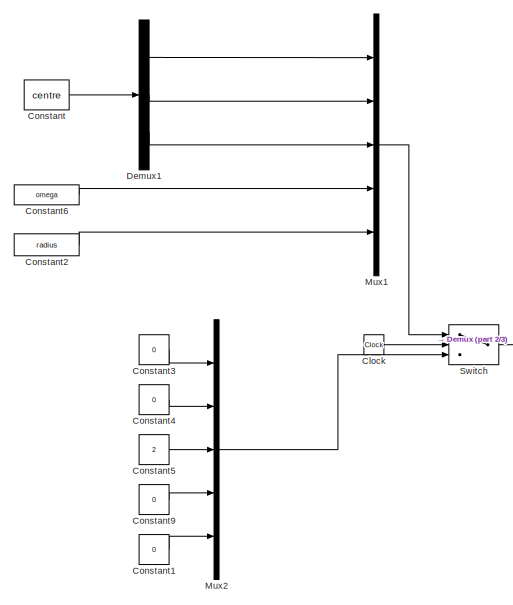
[diagram: root canvas - part 1/3, top left region]
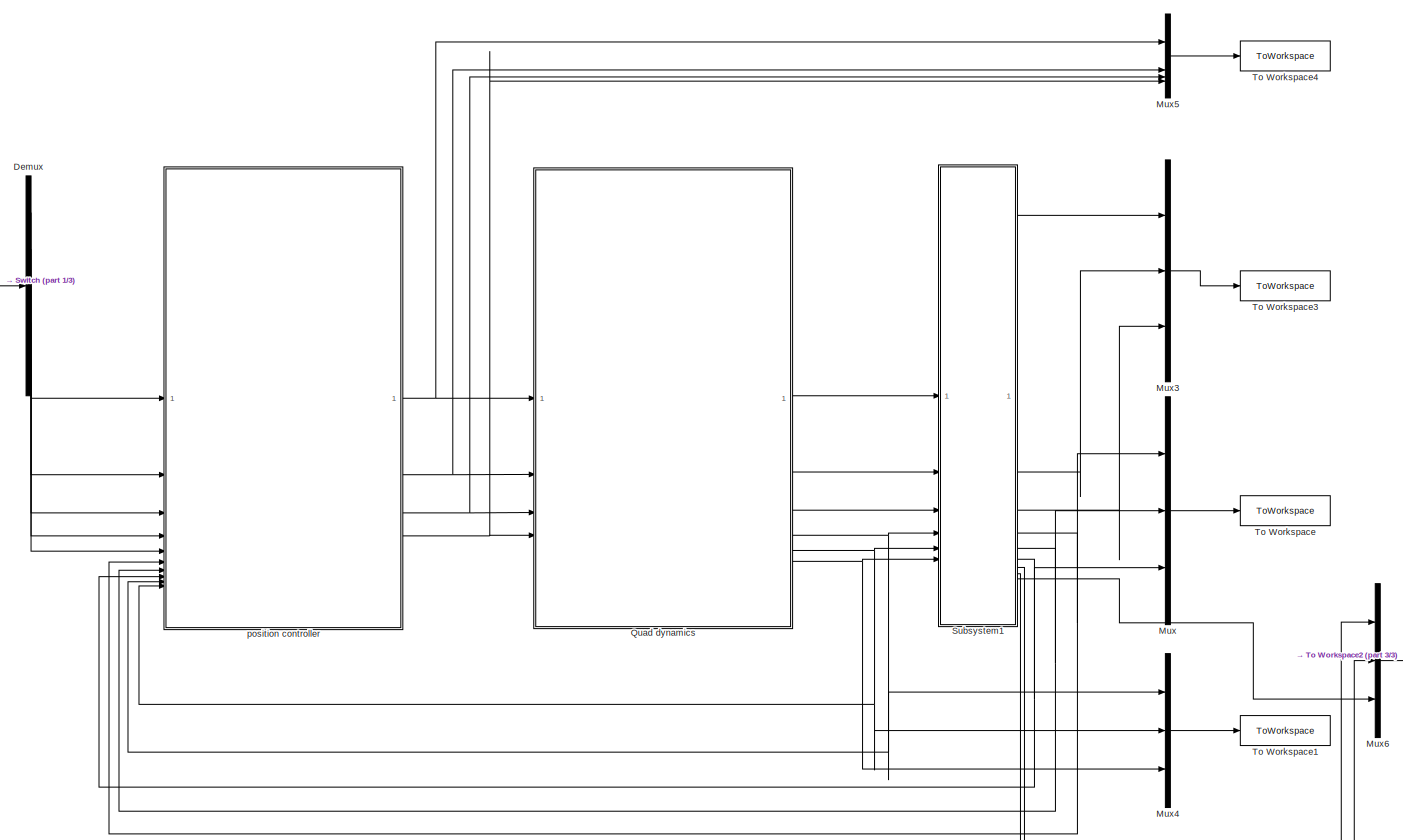
[diagram: root canvas - part 2/3, center side, full height]
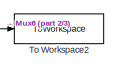
[diagram: root canvas - part 3/3, bottom right region]
MODEL slx_0fd6c9b4a797
KIND model
CONFIG AbsTol = auto
CONFIG EnableMultiTasking = off
CONFIG FixedStep = auto
CONFIG MaxStep = auto
CONFIG MinStep = auto
CONFIG RelTol = 1e-3
CONFIG SampleTimeConstraint = Unconstrained
CONFIG SolverName = VariableStepAuto
CONFIG StartTime = 0.0
CONFIG StopTime = 300
BLOCK [Clock] Clock
BLOCK [Constant] Constant
  Value = centre
BLOCK [Constant] Constant1
  Value = 0
BLOCK [Constant] Constant2
  Value = radius
BLOCK [Constant] Constant3
  Value = 0
BLOCK [Constant] Constant4
  Value = 0
BLOCK [Constant] Constant5
  Value = 2
BLOCK [Constant] Constant6
  Value = omega
BLOCK [Constant] Constant9
  Value = 0
BLOCK [Demux] Demux
  Outputs = 5
BLOCK [Demux] Demux1
  Outputs = 3
BLOCK [Mux] Mux
  DisplayOption = bar
  Inputs = 3
BLOCK [Mux] Mux1
  DisplayOption = bar
  Inputs = 5
BLOCK [Mux] Mux2
  DisplayOption = bar
  Inputs = 5
BLOCK [Mux] Mux3
  DisplayOption = bar
  Inputs = 3
BLOCK [Mux] Mux4
  DisplayOption = bar
  Inputs = 3
BLOCK [Mux] Mux5
  DisplayOption = bar
BLOCK [Mux] Mux6
  DisplayOption = bar
  Inputs = 3
BLOCK [SubSystem] Quad dynamics
  ReferencedSubsystem = multirotor_dynamic_model_sim
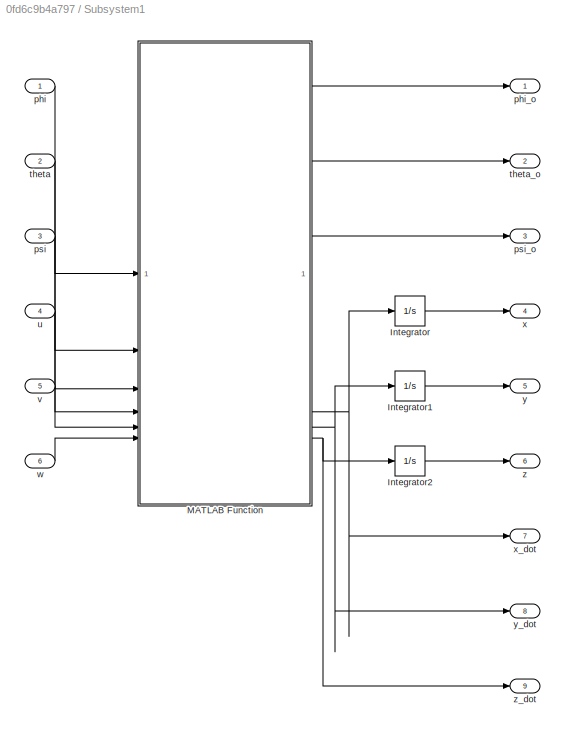
BLOCK [SubSystem] Subsystem1
BLOCK [Integrator] Subsystem1/Integrator
BLOCK [Integrator] Subsystem1/Integrator1
BLOCK [Integrator] Subsystem1/Integrator2
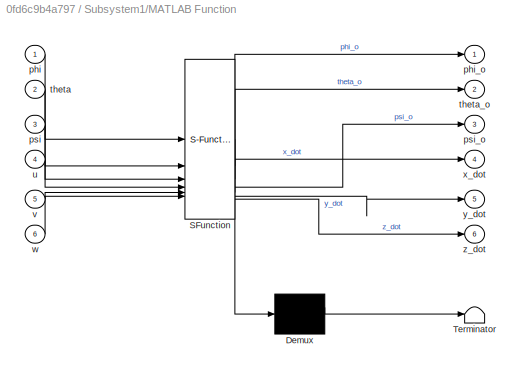
BLOCK [SubSystem] Subsystem1/MATLAB Function
  ErrorFcn = Stateflow.Translate.translate
  PermitHierarchicalResolution = ExplicitOnly
  SFBlockType = MATLAB Function
  TreatAsAtomicUnit = on
BLOCK [Demux] Subsystem1/MATLAB Function/ Demux 
  Outputs = 1
BLOCK [S-Function] Subsystem1/MATLAB Function/ SFunction 
  EnableBusSupport = on
  FunctionName = sf_sfun
  PortCounts = [6 7]
  SFcnIsStateOwnerBlock = off
  SFunctionDeploymentMode = off
  Tag = Stateflow S-Function 4
BLOCK [Terminator] Subsystem1/MATLAB Function/ Terminator 
BLOCK [Inport] Subsystem1/MATLAB Function/phi
BLOCK [Outport] Subsystem1/MATLAB Function/phi_o
BLOCK [Inport] Subsystem1/MATLAB Function/psi
  Port = 3
BLOCK [Outport] Subsystem1/MATLAB Function/psi_o
  Port = 3
BLOCK [Inport] Subsystem1/MATLAB Function/theta
  Port = 2
BLOCK [Outport] Subsystem1/MATLAB Function/theta_o
  Port = 2
BLOCK [Inport] Subsystem1/MATLAB Function/u
  Port = 4
BLOCK [Inport] Subsystem1/MATLAB Function/v
  Port = 5
BLOCK [Inport] Subsystem1/MATLAB Function/w
  Port = 6
BLOCK [Outport] Subsystem1/MATLAB Function/x_dot
  Port = 4
BLOCK [Outport] Subsystem1/MATLAB Function/y_dot
  Port = 5
BLOCK [Outport] Subsystem1/MATLAB Function/z_dot
  Port = 6
BLOCK [Inport] Subsystem1/phi
BLOCK [Outport] Subsystem1/phi_o
BLOCK [Inport] Subsystem1/psi
  Port = 3
BLOCK [Outport] Subsystem1/psi_o
  Port = 3
BLOCK [Inport] Subsystem1/theta
  Port = 2
BLOCK [Outport] Subsystem1/theta_o
  Port = 2
BLOCK [Inport] Subsystem1/u
  Port = 4
BLOCK [Inport] Subsystem1/v
  Port = 5
BLOCK [Inport] Subsystem1/w
  Port = 6
BLOCK [Outport] Subsystem1/x
  Port = 4
BLOCK [Outport] Subsystem1/x_dot
  Port = 7
BLOCK [Outport] Subsystem1/y
  Port = 5
BLOCK [Outport] Subsystem1/y_dot
  Port = 8
BLOCK [Outport] Subsystem1/z
  Port = 6
BLOCK [Outport] Subsystem1/z_dot
  Port = 9
BLOCK [Switch] Switch
  Criteria = u2 > Threshold
  InputSameDT = off
  SaturateOnIntegerOverflow = off
  Threshold = 3
BLOCK [ToWorkspace] To Workspace
  FixptAsFi = on
  MaxDataPoints = inf
  SampleTime = -1
  SaveFormat = Timeseries
  VariableName = position
BLOCK [ToWorkspace] To Workspace1
  FixptAsFi = on
  MaxDataPoints = inf
  SampleTime = -1
  SaveFormat = Timeseries
  VariableName = velocity
BLOCK [ToWorkspace] To Workspace2
  FixptAsFi = on
  MaxDataPoints = inf
  SampleTime = -1
  SaveFormat = Timeseries
  VariableName = velocity_inertial_frame
BLOCK [ToWorkspace] To Workspace3
  FixptAsFi = on
  MaxDataPoints = inf
  SampleTime = -1
  SaveFormat = Timeseries
  VariableName = attitude
BLOCK [ToWorkspace] To Workspace4
  FixptAsFi = on
  MaxDataPoints = inf
  SampleTime = -1
  SaveFormat = Timeseries
  VariableName = control
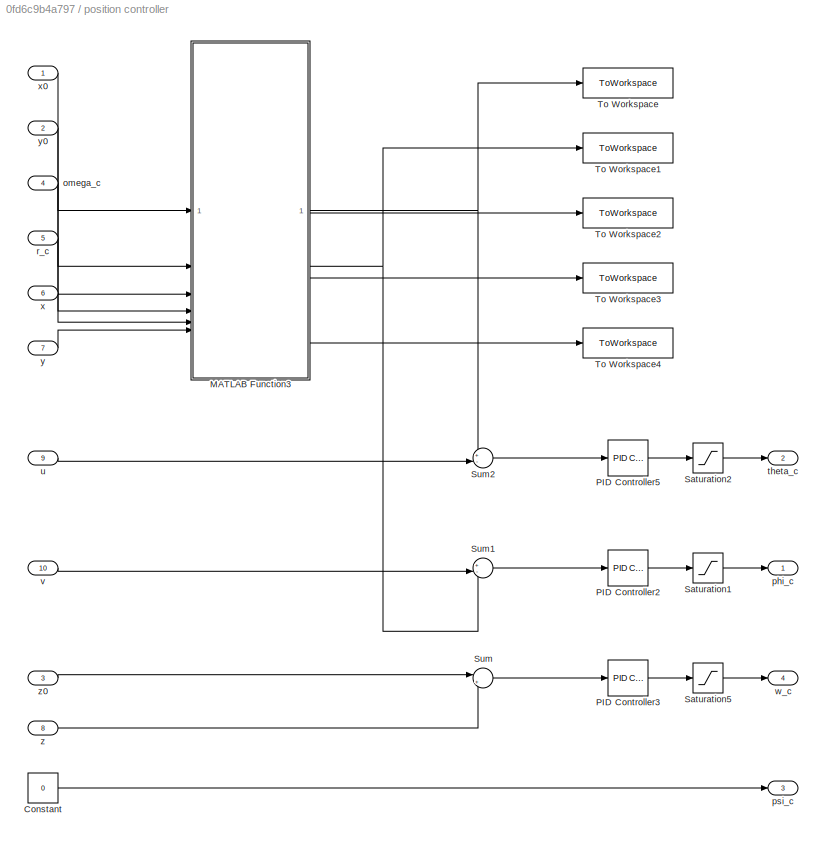
BLOCK [SubSystem] position controller
BLOCK [Constant] position controller/Constant
  Value = 0
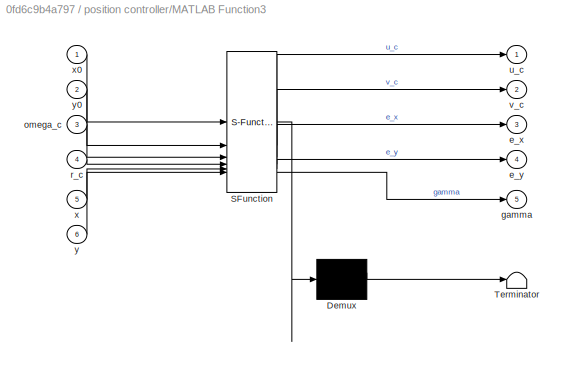
BLOCK [SubSystem] position controller/MATLAB Function3
  ErrorFcn = Stateflow.Translate.translate
  PermitHierarchicalResolution = ExplicitOnly
  SFBlockType = MATLAB Function
  TreatAsAtomicUnit = on
BLOCK [Demux] position controller/MATLAB Function3/ Demux 
  Outputs = 1
BLOCK [S-Function] position controller/MATLAB Function3/ SFunction 
  EnableBusSupport = on
  FunctionName = sf_sfun
  PortCounts = [6 6]
  SFcnIsStateOwnerBlock = off
  SFunctionDeploymentMode = off
  Tag = Stateflow S-Function 5
BLOCK [Terminator] position controller/MATLAB Function3/ Terminator 
BLOCK [Outport] position controller/MATLAB Function3/e_x
  Port = 3
BLOCK [Outport] position controller/MATLAB Function3/e_y
  Port = 4
BLOCK [Outport] position controller/MATLAB Function3/gamma
  Port = 5
BLOCK [Inport] position controller/MATLAB Function3/omega_c
  Port = 3
BLOCK [Inport] position controller/MATLAB Function3/r_c
  Port = 4
BLOCK [Outport] position controller/MATLAB Function3/u_c
BLOCK [Outport] position controller/MATLAB Function3/v_c
  Port = 2
BLOCK [Inport] position controller/MATLAB Function3/x
  Port = 5
BLOCK [Inport] position controller/MATLAB Function3/x0
BLOCK [Inport] position controller/MATLAB Function3/y
  Port = 6
BLOCK [Inport] position controller/MATLAB Function3/y0
  Port = 2
BLOCK [Reference] position controller/PID Controller2  REF=slpidlib/PID Controller
  LibrarySourceBlock = simulink/Continuous/PID Controller
  SourceBlock = slpidlib/PID Controller
  SourceType = PID 1dof
BLOCK [Reference] position controller/PID Controller3  REF=slpidlib/PID Controller
  LibrarySourceBlock = simulink/Continuous/PID Controller
  SourceBlock = slpidlib/PID Controller
  SourceType = PID 1dof
BLOCK [Reference] position controller/PID Controller5  REF=slpidlib/PID Controller
  LibrarySourceBlock = simulink/Continuous/PID Controller
  SourceBlock = slpidlib/PID Controller
  SourceType = PID 1dof
BLOCK [Saturate] position controller/Saturation1
  LowerLimit = -1
  UpperLimit = 1
BLOCK [Saturate] position controller/Saturation2
  LowerLimit = -1
  UpperLimit = 1
BLOCK [Saturate] position controller/Saturation5
  LowerLimit = -1
  UpperLimit = 1
BLOCK [Sum] position controller/Sum
  Inputs = |+-
BLOCK [Sum] position controller/Sum1
  Inputs = +-|
BLOCK [Sum] position controller/Sum2
  Inputs = +-|
BLOCK [ToWorkspace] position controller/To Workspace
  FixptAsFi = on
  MaxDataPoints = inf
  SampleTime = -1
  SaveFormat = Timeseries
  VariableName = u_c
BLOCK [ToWorkspace] position controller/To Workspace1
  FixptAsFi = on
  MaxDataPoints = inf
  SampleTime = -1
  SaveFormat = Timeseries
  VariableName = v_c
BLOCK [ToWorkspace] position controller/To Workspace2
  FixptAsFi = on
  MaxDataPoints = inf
  SampleTime = -1
  SaveFormat = Timeseries
  VariableName = e_x
BLOCK [ToWorkspace] position controller/To Workspace3
  FixptAsFi = on
  MaxDataPoints = inf
  SampleTime = -1
  SaveFormat = Timeseries
  VariableName = e_y
BLOCK [ToWorkspace] position controller/To Workspace4
  FixptAsFi = on
  MaxDataPoints = inf
  SampleTime = -1
  SaveFormat = Timeseries
  VariableName = gamma
BLOCK [Inport] position controller/omega_c
  Port = 4
BLOCK [Outport] position controller/phi_c
BLOCK [Outport] position controller/psi_c
  Port = 3
BLOCK [Inport] position controller/r_c
  Port = 5
BLOCK [Outport] position controller/theta_c
  Port = 2
BLOCK [Inport] position controller/u
  Port = 9
BLOCK [Inport] position controller/v
  Port = 10
BLOCK [Outport] position controller/w_c
  Port = 4
BLOCK [Inport] position controller/x
  Port = 6
BLOCK [Inport] position controller/x0
BLOCK [Inport] position controller/y
  Port = 7
BLOCK [Inport] position controller/y0
  Port = 2
BLOCK [Inport] position controller/z
  Port = 8
BLOCK [Inport] position controller/z0
  Port = 3
LINE Clock:1 -> Switch:2
LINE Constant1:1 -> Mux2:5
LINE Constant2:1 -> Mux1:5
LINE Constant3:1 -> Mux2:1
LINE Constant4:1 -> Mux2:2
LINE Constant5:1 -> Mux2:3
LINE Constant6:1 -> Mux1:4
LINE Constant9:1 -> Mux2:4
LINE Constant:1 -> Demux1:1
LINE Demux1:1 -> Mux1:1
LINE Demux1:2 -> Mux1:2
LINE Demux1:3 -> Mux1:3
LINE Demux:1 -> position controller:1
LINE Demux:2 -> position controller:2
LINE Demux:3 -> position controller:3
LINE Demux:4 -> position controller:4
LINE Demux:5 -> position controller:5
LINE Mux1:1 -> Switch:1
LINE Mux2:1 -> Switch:3
LINE Mux3:1 -> To Workspace3:1
LINE Mux4:1 -> To Workspace1:1
LINE Mux5:1 -> To Workspace4:1
LINE Mux6:1 -> To Workspace2:1
LINE Mux:1 -> To Workspace:1
LINE Quad dynamics:1 -> Subsystem1:1
LINE Quad dynamics:2 -> Subsystem1:2
LINE Quad dynamics:3 -> Subsystem1:3
NET Quad dynamics:4 -> Mux4:1, Subsystem1:4, position controller:9
NET Quad dynamics:5 -> Mux4:2, Subsystem1:5, position controller:10
NET Quad dynamics:6 -> Mux4:3, Subsystem1:6
LINE Subsystem1/Integrator1:1 -> Subsystem1/y:1
LINE Subsystem1/Integrator2:1 -> Subsystem1/z:1
LINE Subsystem1/Integrator:1 -> Subsystem1/x:1
LINE Subsystem1/MATLAB Function:1 -> Subsystem1/phi_o:1
LINE Subsystem1/MATLAB Function:2 -> Subsystem1/theta_o:1
LINE Subsystem1/MATLAB Function:3 -> Subsystem1/psi_o:1
NET Subsystem1/MATLAB Function:4 -> Subsystem1/Integrator:1, Subsystem1/x_dot:1
NET Subsystem1/MATLAB Function:5 -> Subsystem1/Integrator1:1, Subsystem1/y_dot:1
NET Subsystem1/MATLAB Function:6 -> Subsystem1/Integrator2:1, Subsystem1/z_dot:1
LINE Subsystem1/phi:1 -> Subsystem1/MATLAB Function:1
LINE Subsystem1/psi:1 -> Subsystem1/MATLAB Function:3
LINE Subsystem1/theta:1 -> Subsystem1/MATLAB Function:2
LINE Subsystem1/u:1 -> Subsystem1/MATLAB Function:4
LINE Subsystem1/v:1 -> Subsystem1/MATLAB Function:5
LINE Subsystem1/w:1 -> Subsystem1/MATLAB Function:6
LINE Subsystem1:1 -> Mux3:1
LINE Subsystem1:2 -> Mux3:2
LINE Subsystem1:3 -> Mux3:3
NET Subsystem1:4 -> Mux:1, position controller:6
NET Subsystem1:5 -> Mux:2, position controller:7
NET Subsystem1:6 -> Mux:3, position controller:8
LINE Subsystem1:7 -> Mux6:1
LINE Subsystem1:8 -> Mux6:2
LINE Subsystem1:9 -> Mux6:3
LINE Switch:1 -> Demux:1
LINE position controller/Constant:1 -> position controller/psi_c:1
NET position controller/MATLAB Function3:1 -> position controller/Sum2:1, position controller/To Workspace:1
NET position controller/MATLAB Function3:2 -> position controller/Sum1:1, position controller/To Workspace1:1
LINE position controller/MATLAB Function3:3 -> position controller/To Workspace2:1
LINE position controller/MATLAB Function3:4 -> position controller/To Workspace3:1
LINE position controller/MATLAB Function3:5 -> position controller/To Workspace4:1
LINE position controller/PID Controller2:1 -> position controller/Saturation1:1
LINE position controller/PID Controller3:1 -> position controller/Saturation5:1
LINE position controller/PID Controller5:1 -> position controller/Saturation2:1
LINE position controller/Saturation1:1 -> position controller/phi_c:1
LINE position controller/Saturation2:1 -> position controller/theta_c:1
LINE position controller/Saturation5:1 -> position controller/w_c:1
LINE position controller/Sum1:1 -> position controller/PID Controller2:1
LINE position controller/Sum2:1 -> position controller/PID Controller5:1
LINE position controller/Sum:1 -> position controller/PID Controller3:1
LINE position controller/omega_c:1 -> position controller/MATLAB Function3:3
LINE position controller/r_c:1 -> position controller/MATLAB Function3:4
LINE position controller/u:1 -> position controller/Sum2:2
LINE position controller/v:1 -> position controller/Sum1:2
LINE position controller/x0:1 -> position controller/MATLAB Function3:1
LINE position controller/x:1 -> position controller/MATLAB Function3:5
LINE position controller/y0:1 -> position controller/MATLAB Function3:2
LINE position controller/y:1 -> position controller/MATLAB Function3:6
LINE position controller/z0:1 -> position controller/Sum:1
LINE position controller/z:1 -> position controller/Sum:2
NET position controller:1 -> Mux5:1, Quad dynamics:1
NET position controller:2 -> Mux5:2, Quad dynamics:2
NET position controller:3 -> Mux5:3, Quad dynamics:3
NET position controller:4 -> Mux5:4, Quad dynamics:4
note: NET lines group one-source signal fan-out (src -> all destinations, sorted); 1:1 wires keep LINE
CHART Subsystem1/MATLAB Function states=1 transitions=1
  STATE_LABEL 'eML_blk_kernel()'
  STATE_LABEL 'SCRIPT:\nfunction [phi_o, theta_o, psi_o, x_dot, y_dot, z_dot] = fcn(phi, theta, psi, u, v, w)\n\n% s1 = sin(phi);\n% c1 = cos(phi);\n% s2 = sin(theta);\n% c2 = cos(theta);\n% s3 = sin(psi);\n% c3 = cos(psi);\n\n% s1 = 0;\n% c1 = 1;\n% s2 = 0;\n% c2 = 1;\n% s3 = sin(psi);\n% c3 = cos(psi);\n\n% x_dot = u * (c2 * c3) + v * (s1 * s2 * c3 - c1 * s3) + w * (c1 * s2 * c3 + s1 * s3);\n% y_dot = u * (c2 * s3) + v * (s1 * ...<+177ch>'
CHART position controller/MATLAB Function3 states=1 transitions=1
  STATE_LABEL 'eML_blk_kernel()'
  STATE_LABEL 'SCRIPT:\nfunction [u_c, v_c, e_x, e_y, gamma] = calc_reference(x0, y0, omega_c, r_c, x, y)\n\nspeed = omega_c * r_c;\n\ndx = x - x0;\ndy = y - y0;\ngamma = atan2(dy, dx); % direction to center (or tracked position if r = 0)\n\nx_c = x0 + r_c * cos(gamma);\ny_c = y0 + r_c * sin(gamma);\n\ne_x = x_c - x;\ne_y = y_c - y;\n\nbeta = gamma + pi / 2; % * omega_c / abs(omega_c); % direction of orbiting velocity\nu_c = sp...<+61ch>'
CHART  states=0 transitions=0
CHART  states=0 transitions=0
